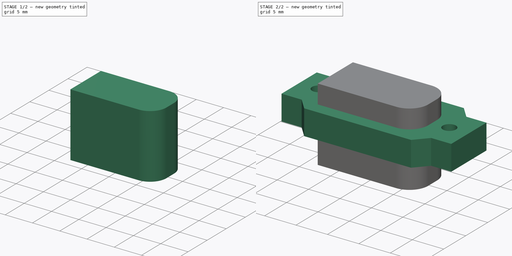
[diagram: build sequence overview — one tinted view per stage of 2, left to right]
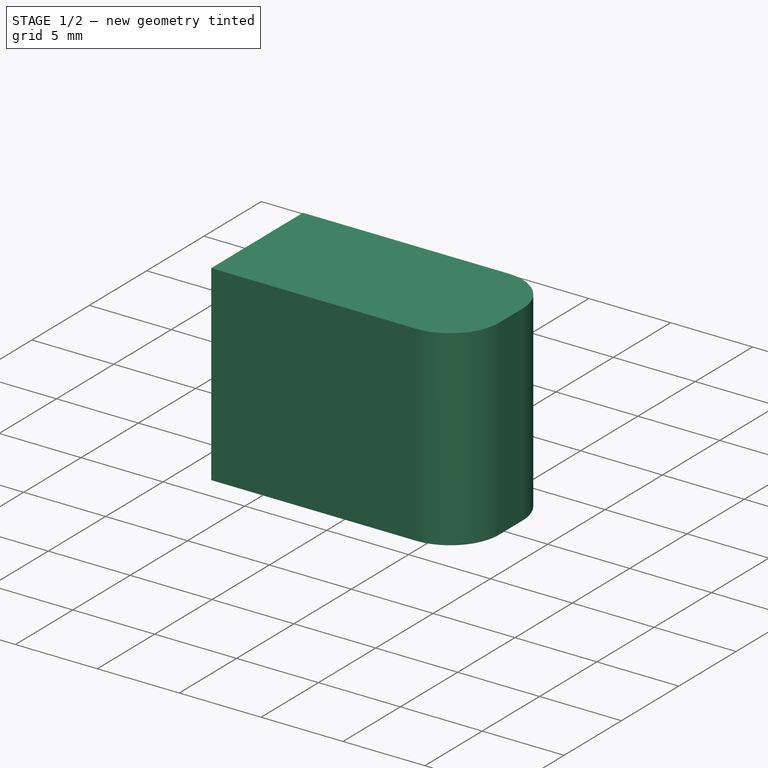
[diagram: stage 1 of 2 — iso view after this stage's code; geometry added in this stage tinted green]
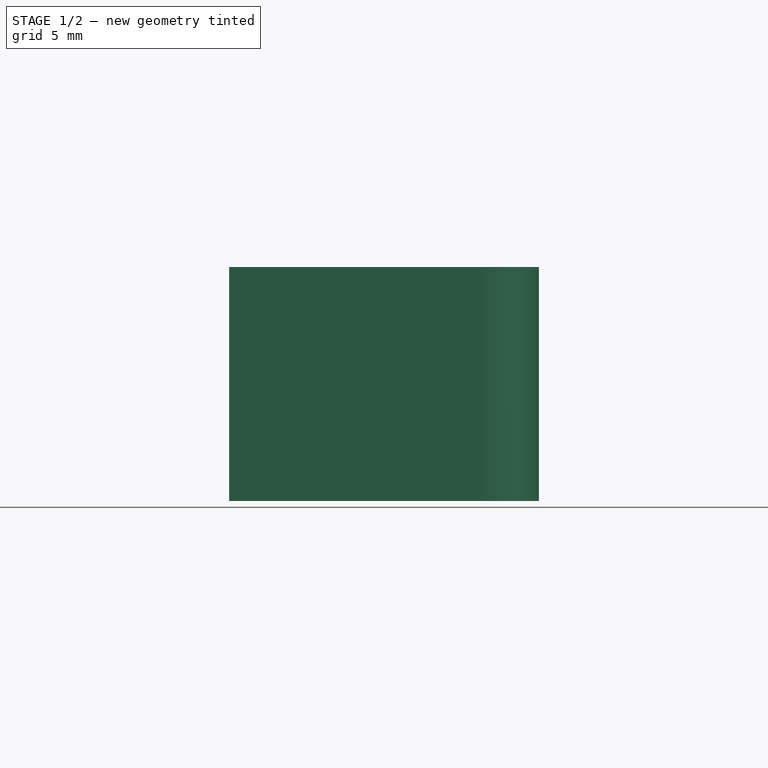
[diagram: stage 1 of 2 — front view after this stage's code; geometry added in this stage tinted green]
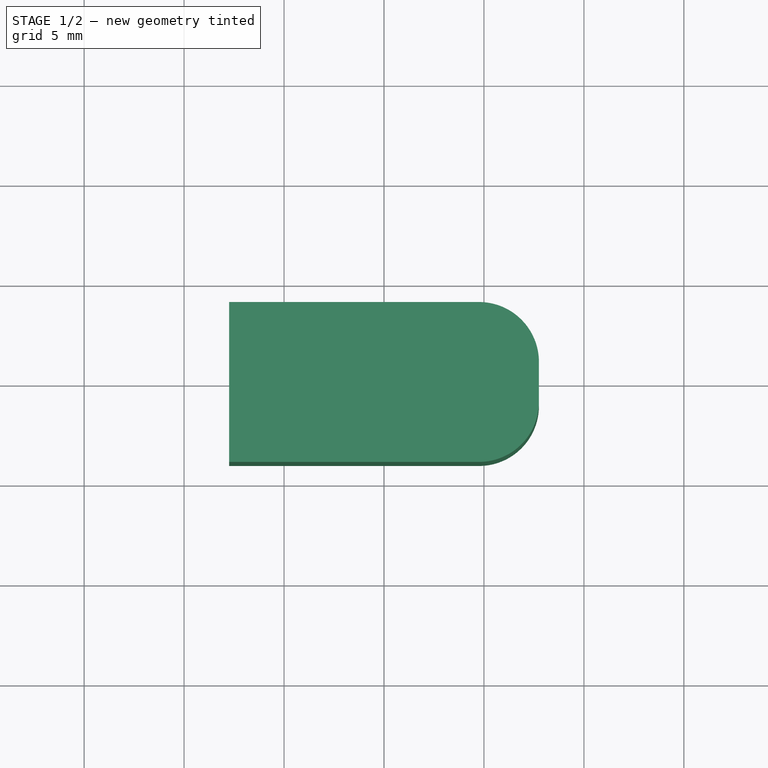
[diagram: stage 1 of 2 — top view after this stage's code; geometry added in this stage tinted green]
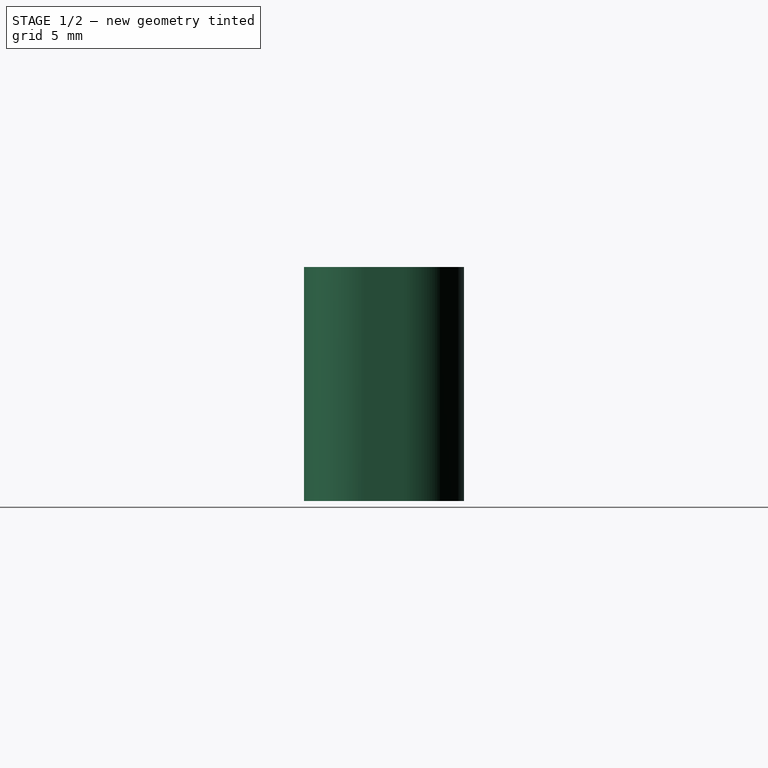
[diagram: stage 1 of 2 — right view after this stage's code; geometry added in this stage tinted green]
FCSTD DOCUMENT  (FreeCAD 0.20R29177 (Git))
Label: Stecker
License: All rights reserved
LicenseURL: http://en.wikipedia.org/wiki/All_rights_reserved
objects: Sketcher::SketchObject×2, PartDesign::Pad×2, PartDesign::Body×1
note: 7 computed .brp shape members not serialized (recipe doc carries the construction recipe); baked Part::Feature solids carry a one-line shape summary decoded from their .brp

FEATURE [Sketcher::SketchObject] Sketch
  FullyConstrained = true
  MapMode = 5
  Support = -> [XY_Plane]
  sketch-geometry (7):
    g0: LineSegment StartX=-7.75 StartY=-4 StartZ=0 EndX=-7.75 EndY=4 EndZ=0
    g1: LineSegment StartX=-7.75 StartY=4 StartZ=0 EndX=4.75 EndY=4 EndZ=0
    g2: ArcOfCircle CenterX=4.75 CenterY=1 CenterZ=0 NormalX=0 NormalY=0 NormalZ=1 AngleXU=0 Radius=3 StartAngle=2e-16 EndAngle=1.5708
    g3: LineSegment StartX=7.75 StartY=1 StartZ=0 EndX=7.75 EndY=-1 EndZ=0
    g4: ArcOfCircle CenterX=4.75 CenterY=-1 CenterZ=0 NormalX=0 NormalY=0 NormalZ=1 AngleXU=0 Radius=3 StartAngle=4.71239 EndAngle=6.28319
    g5: LineSegment StartX=4.75 StartY=-4 StartZ=0 EndX=-7.75 EndY=-4 EndZ=0
    g6: GeomPoint X=7.75 Y=4 Z=0
  constraints (15):
    c: Coincident(g0,g1)
    c: Horizontal(g1)
    c: Tangent(g1,g2) = 1.5708
    c: Tangent(g2,g3) = 1.5708
    c: Tangent(g3,g4) = 1.5708
    c: Tangent(g4,g5) = 1.5708
    c: Coincident(g5,g0)
    c: Symmetric(g1,g4,g-1)
    c: Symmetric(g2,g3,g-1)
    c: Symmetric(g0,g0,g-1)
    c: DistanceY(g0,g0) = 8
    c: PointOnObject(g6,g3)
    c: Symmetric(g6,g0,g-2)
    c: Radius(g4) = 3
    c: DistanceX(g0,g6) = 15.5
FEATURE [PartDesign::Pad] Pad
  Direction = (0,0,1)
  Length = 3
  Length2 = 8.7
  Profile = -> Sketch
  ReferenceAxis = -> Sketch [N_Axis]
  Type = 4
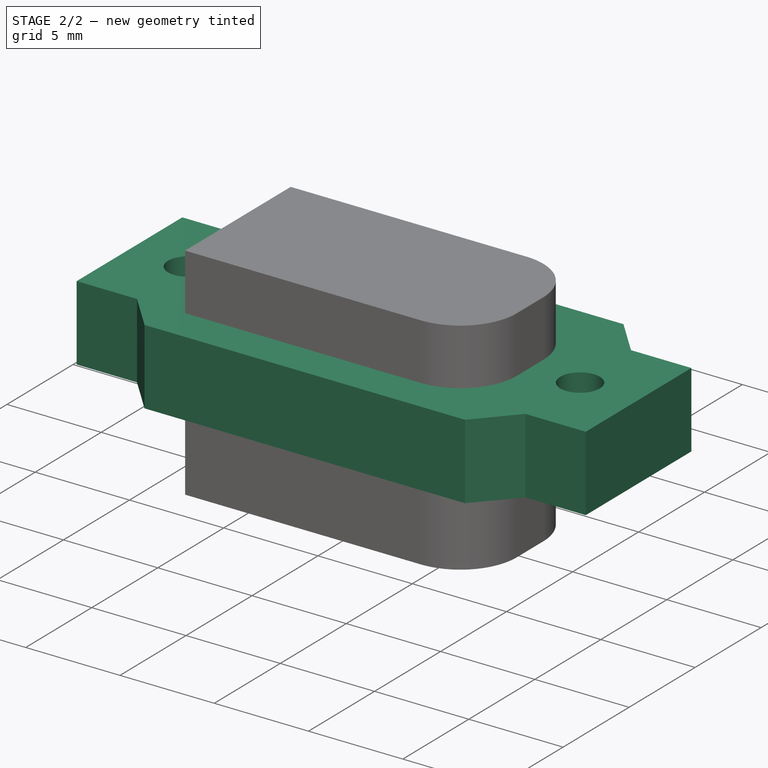
[diagram: stage 2 of 2 — iso view after this stage's code; geometry added in this stage tinted green]
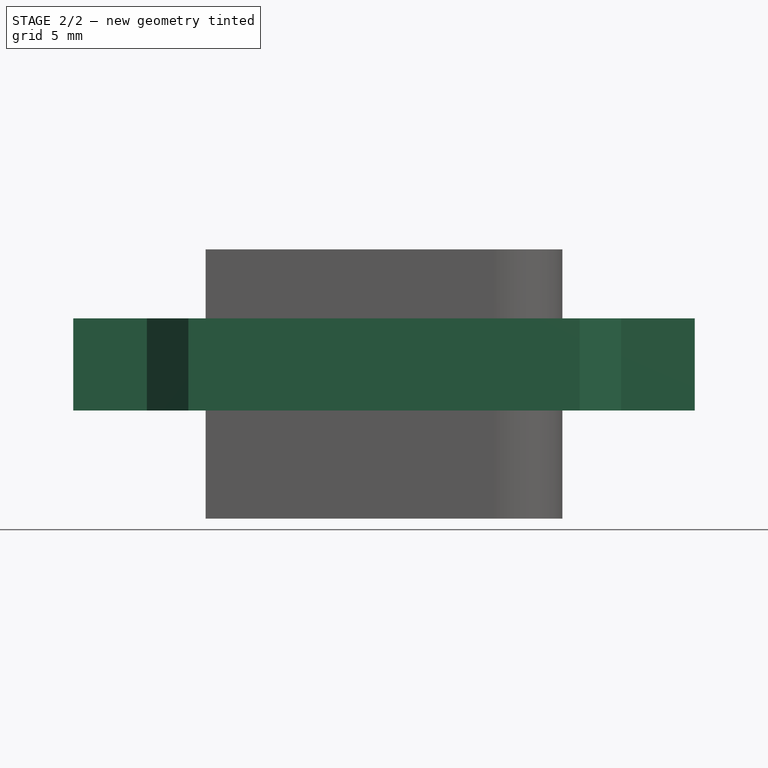
[diagram: stage 2 of 2 — front view after this stage's code; geometry added in this stage tinted green]
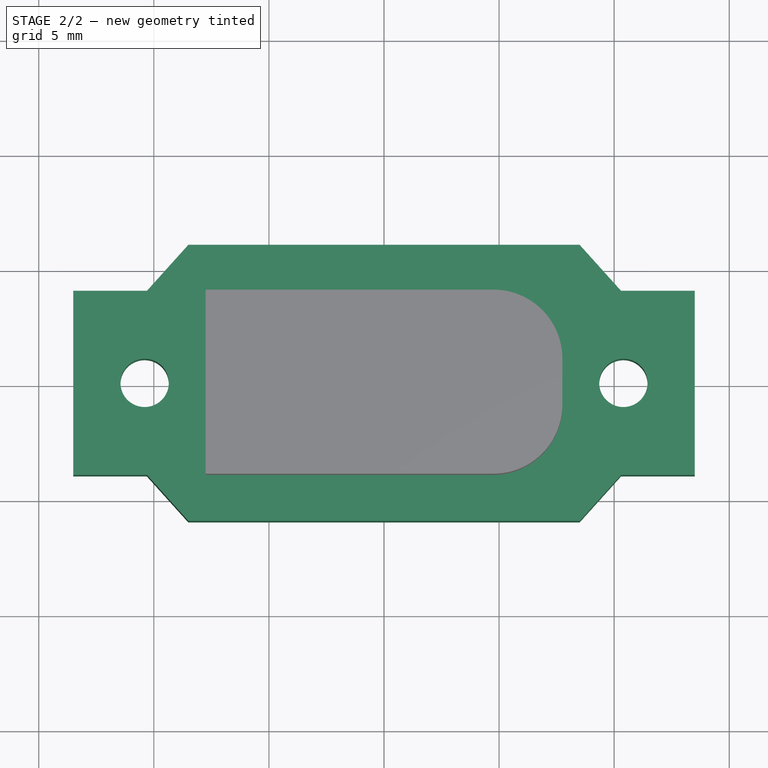
[diagram: stage 2 of 2 — top view after this stage's code; geometry added in this stage tinted green]
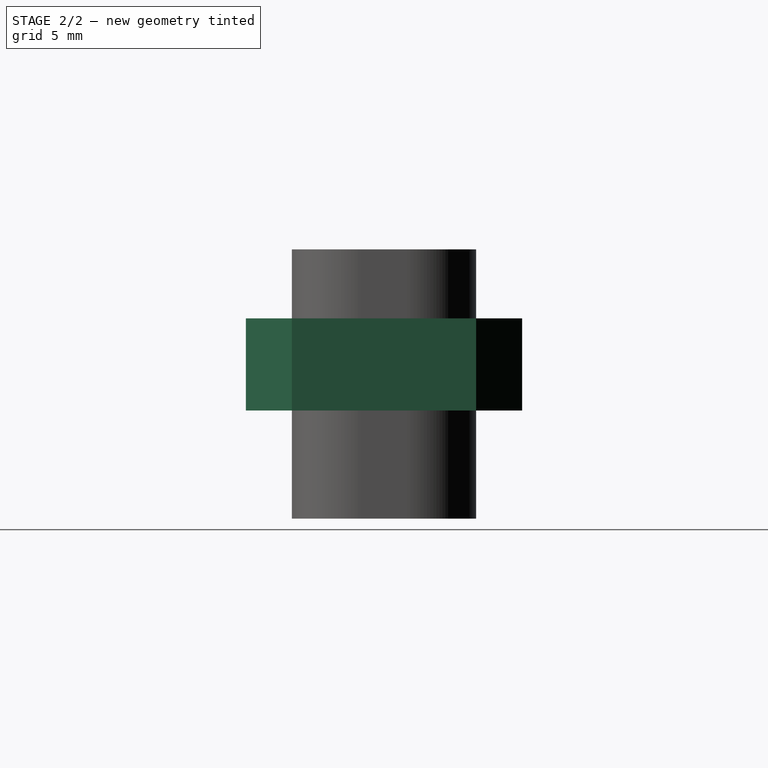
[diagram: stage 2 of 2 — right view after this stage's code; geometry added in this stage tinted green]
FEATURE [Sketcher::SketchObject] Sketch001
  FullyConstrained = true
  MapMode = 5
  Support = -> [XY_Plane]
  sketch-geometry (14):
    g0: LineSegment StartX=-13.5 StartY=4 StartZ=0 EndX=-13.5 EndY=-4 EndZ=0
    g1: LineSegment StartX=-13.5 StartY=-4 StartZ=0 EndX=-10.3 EndY=-4 EndZ=0
    g2: LineSegment StartX=-10.3 StartY=-4 StartZ=0 EndX=-8.5 EndY=-6 EndZ=0
    g3: LineSegment StartX=-8.5 StartY=-6 StartZ=0 EndX=8.5 EndY=-6 EndZ=0
    g4: LineSegment StartX=8.5 StartY=-6 StartZ=0 EndX=10.3 EndY=-4 EndZ=0
    g5: LineSegment StartX=10.3 StartY=-4 StartZ=0 EndX=13.5 EndY=-4 EndZ=0
    g6: LineSegment StartX=13.5 StartY=-4 StartZ=0 EndX=13.5 EndY=4 EndZ=0
    g7: LineSegment StartX=13.5 StartY=4 StartZ=0 EndX=10.3 EndY=4 EndZ=0
    g8: LineSegment StartX=10.3 StartY=4 StartZ=0 EndX=8.5 EndY=6 EndZ=0
    g9: LineSegment StartX=8.5 StartY=6 StartZ=0 EndX=-8.5 EndY=6 EndZ=0
    g10: LineSegment StartX=-8.5 StartY=6 StartZ=0 EndX=-10.3 EndY=4 EndZ=0
    g11: LineSegment StartX=-10.3 StartY=4 StartZ=0 EndX=-13.5 EndY=4 EndZ=0
    g12: Circle CenterX=-10.4 CenterY=0 CenterZ=0 NormalX=0 NormalY=0 NormalZ=1 AngleXU=0 Radius=1.05
    g13: Circle CenterX=10.4 CenterY=0 CenterZ=0 NormalX=0 NormalY=0 NormalZ=1 AngleXU=0 Radius=1.05
  constraints (33):
    c: Coincident(g0,g1)
    c: Coincident(g1,g2)
    c: Coincident(g2,g3)
    c: Coincident(g3,g4)
    c: Coincident(g4,g5)
    c: Horizontal(g5)
    c: Coincident(g5,g6)
    c: Vertical(g6)
    c: Coincident(g6,g7)
    c: Horizontal(g7)
    c: Coincident(g7,g8)
    c: Coincident(g8,g9)
    c: Coincident(g9,g10)
    c: Coincident(g10,g11)
    c: Coincident(g11,g0)
    c: Symmetric(g0,g0,g-1)
    c: Symmetric(g0,g6,g-2)
    c: Symmetric(g10,g7,g-2)
    c: Symmetric(g1,g10,g-1)
    c: Symmetric(g4,g7,g-1)
    c: Symmetric(g3,g8,g-1)
    c: Symmetric(g3,g2,g-2)
    c: Symmetric(g9,g8,g-2)
    c: DistanceY(g6,g6) = 8
    c: DistanceX(g0,g6) = 27
    c: DistanceX(g9,g9) = 17
    c: DistanceX(g1,g4) = 20.6
    c: DistanceY(g3,g8) = 12
    c: PointOnObject(g12,g-1)
    c: Symmetric(g13,g12,g-2)
    c: Equal(g13,g12)
    c: Diameter(g13) = 2.1
    c: DistanceX(g12,g13) = 20.8
FEATURE [PartDesign::Pad] Pad001
  BaseFeature = -> Pad
  Direction = (0,0,1)
  Length = 4
  Length2 = 10
  Profile = -> Sketch001
  ReferenceAxis = -> Sketch001 [N_Axis]
  Reversed = true
  Type = 0
FEATURE [PartDesign::Body] Body
  Group = -> [Sketch,Pad,Sketch001,Pad001]
  Origin = -> Origin
  Tip = -> Pad001
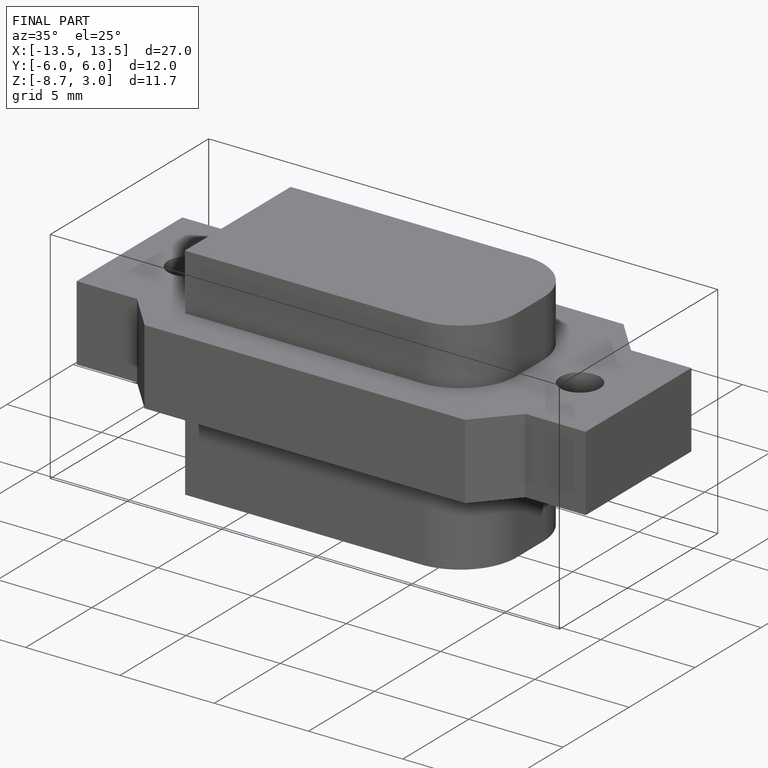
[diagram: finished part — iso view with bounding-box wireframe]
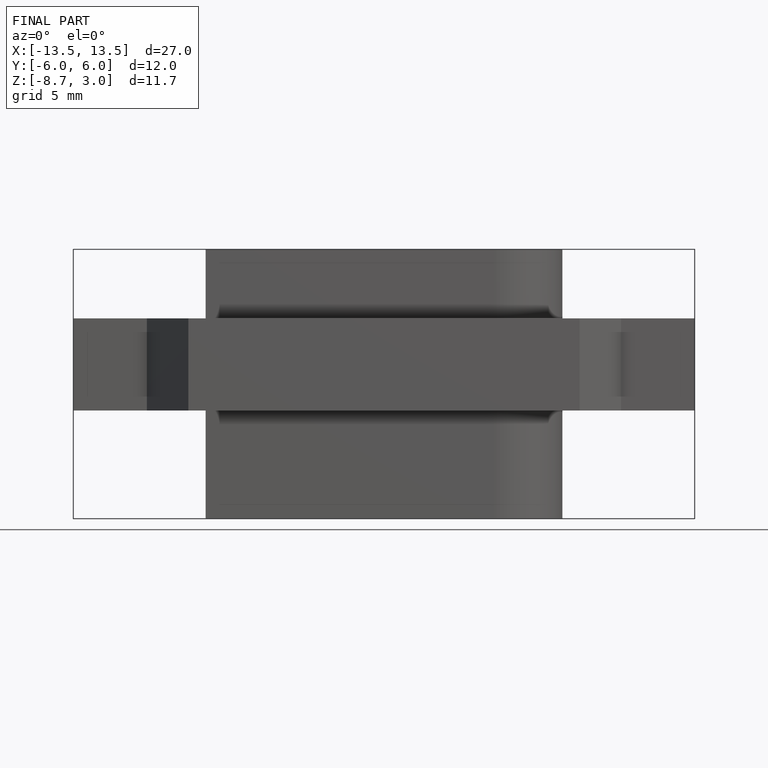
[diagram: finished part — front view with bounding-box wireframe]
